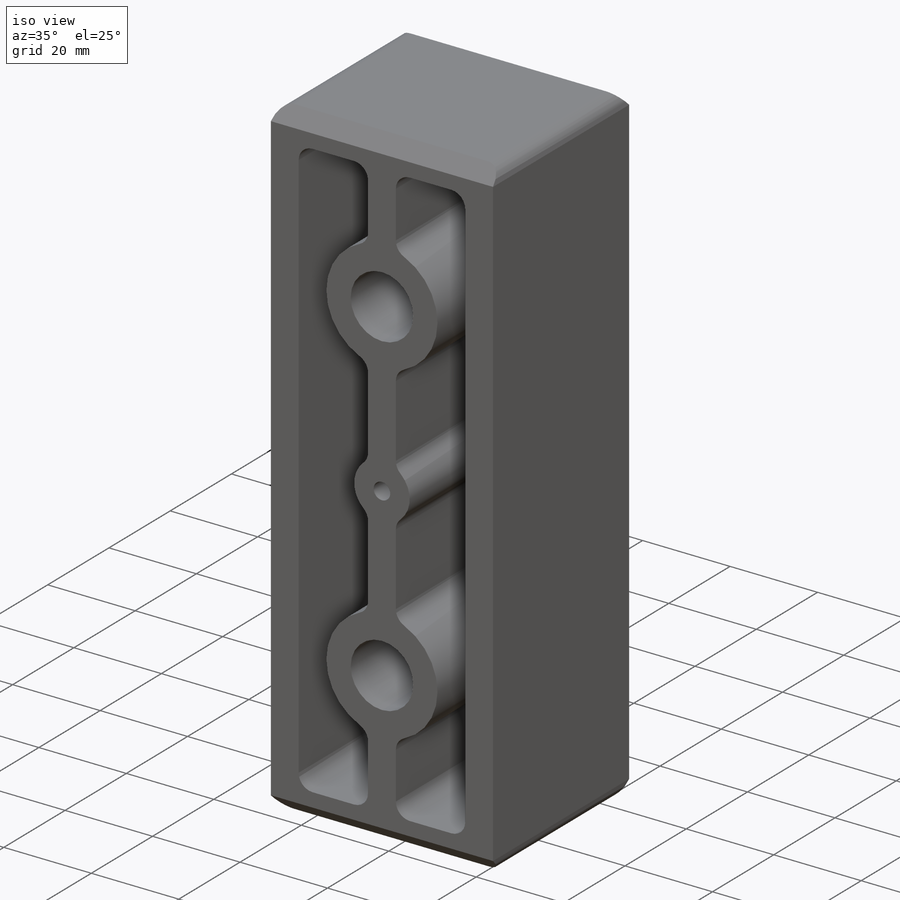
[diagram: iso view]
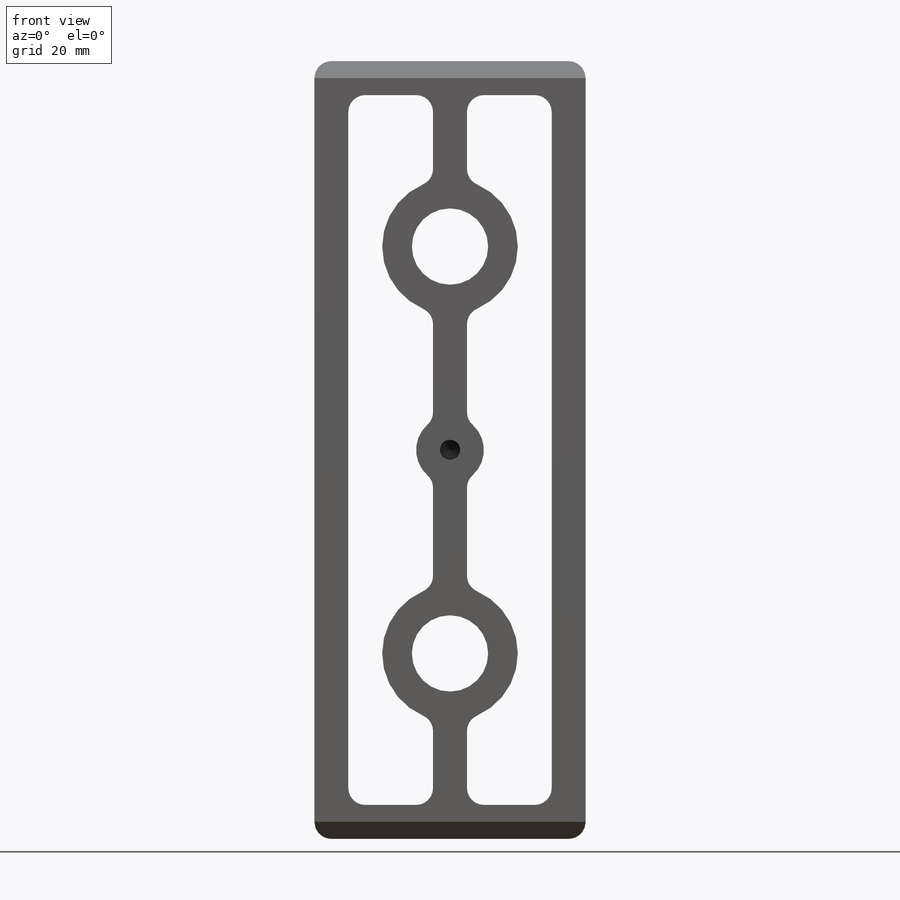
[diagram: front view]
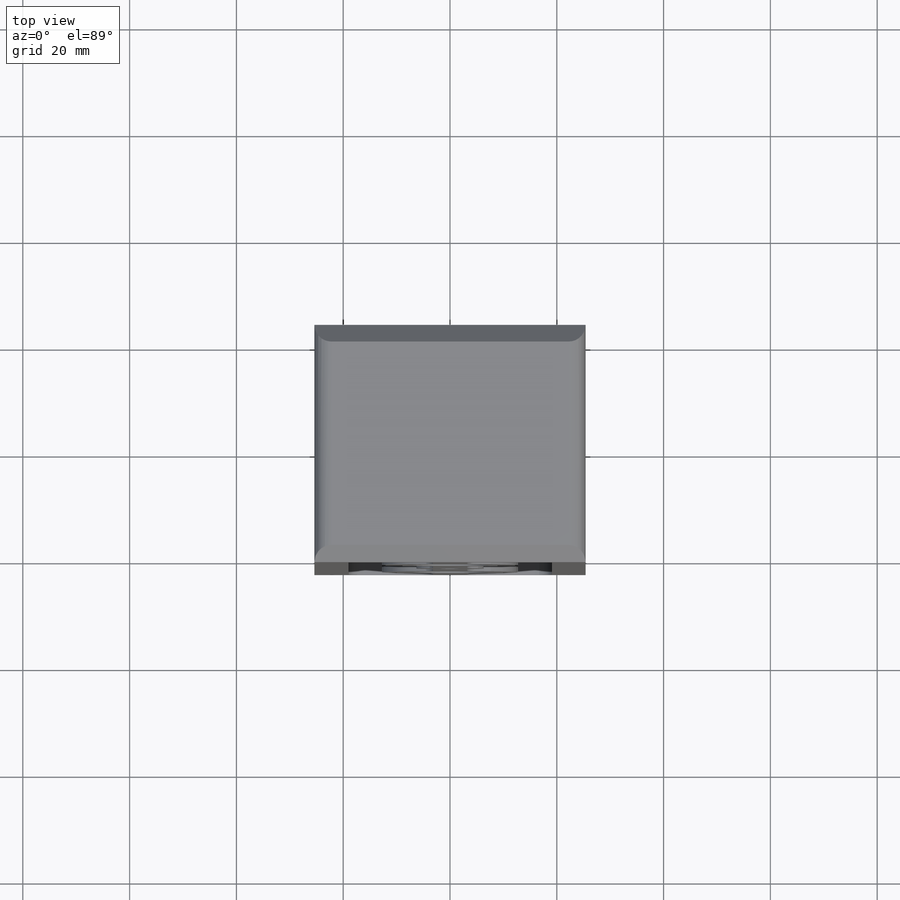
[diagram: top view]
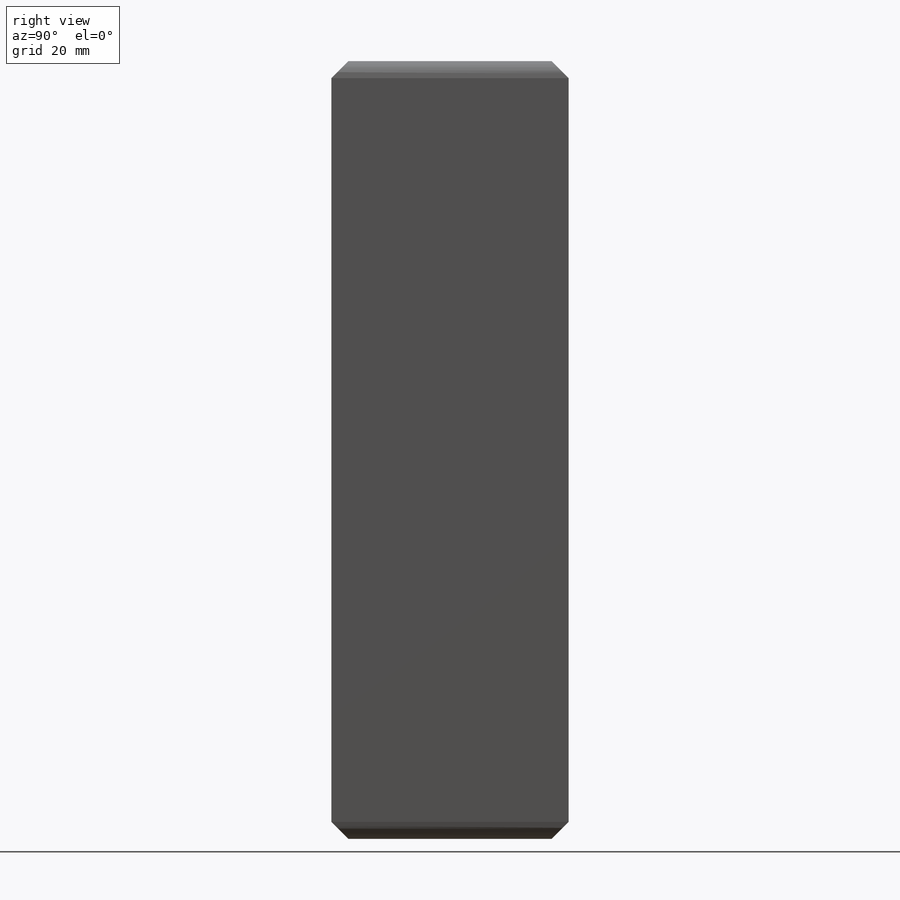
[diagram: right view]
SOLIDWORKS PART (.sldprt)
format: sldprt  version: not decoded by parser v0  size: 394,240 bytes
history: native  units: mm
features: sketch x5, mirror x4, cut_extrude x2, fillet x2, material x1, extrude x1, hole x1, thread x1 (+11 scaffold rows collapsed)
feature tree (28):
  scaffold x11  (default folders/planes/origin — collapsed)
  material  "6061-T6 (SS)"
  sketch  "Sketch1"  dims[c1.D6=14.2875mm c1.D1=47.625mm c1.D2=50.8mm c1.D3=152.4mm c1.D4=145.6436mm c1.D5=3.175mm c2.D2=50.8mm c2.D1=145.6436mm c3.D2=50.8mm c3.D3=76.2mm c3.D4=4.7625mm c3.D5=152.4mm]
  extrude  "Boss-Extrude1"  Depth=44.45mm
  sketch  "Sketch3"  dims[c1.D3=25.4mm c1.D6=12.7mm c1.D2=12.7mm c2.D3=12.7mm c2.D4=12.7mm c2.D1=6.35mm c2.D2=6.35mm c3.D1=6.35mm c3.D4=6.35mm c3.D5=63.5mm c4.D4=15.875mm c4.D2=38.1mm c4.D6=~6.673791mm]
  cut_extrude  "Cut-Extrude2"  [1 undecoded]
  mirror  "Mirror4"
  mirror  "Mirror1"
  fillet  "Fillet1"  Radius=3.175mm
  sketch  "Sketch5"  dims[c1.D1=~9.364769mm c2.D1=45.0deg]
  cut_extrude  "Cut-Extrude4"  [1 undecoded]
  mirror  "Mirror2"
  mirror  "Mirror3"
  hole  "#10-24 Tapped Hole1"  Diameter=3.7973mm Depth=14.986mm
  sketch  "Sketch9"
  sketch  "Sketch8"  dims[hole-wizard template sketch: 47 standard entries collapsed; hole parameters kept: c15.Tap Drill Depth=14.986mm c15.D3=~14.816244mm c15.Drill Angle=118.0deg]
  thread  "Hole Thread2"  Diameter=9.652mm  [1 undecoded]
  fillet  "Fillet2"  Radius=3.175mm
decode coverage: 9 of 16 modeling features carry decoded parameters
note: ~ marks probable driven/reference dimensions
note: 3 parameter values undecoded
note: suppression state not decoded; provenance and decode notes live in map.json
